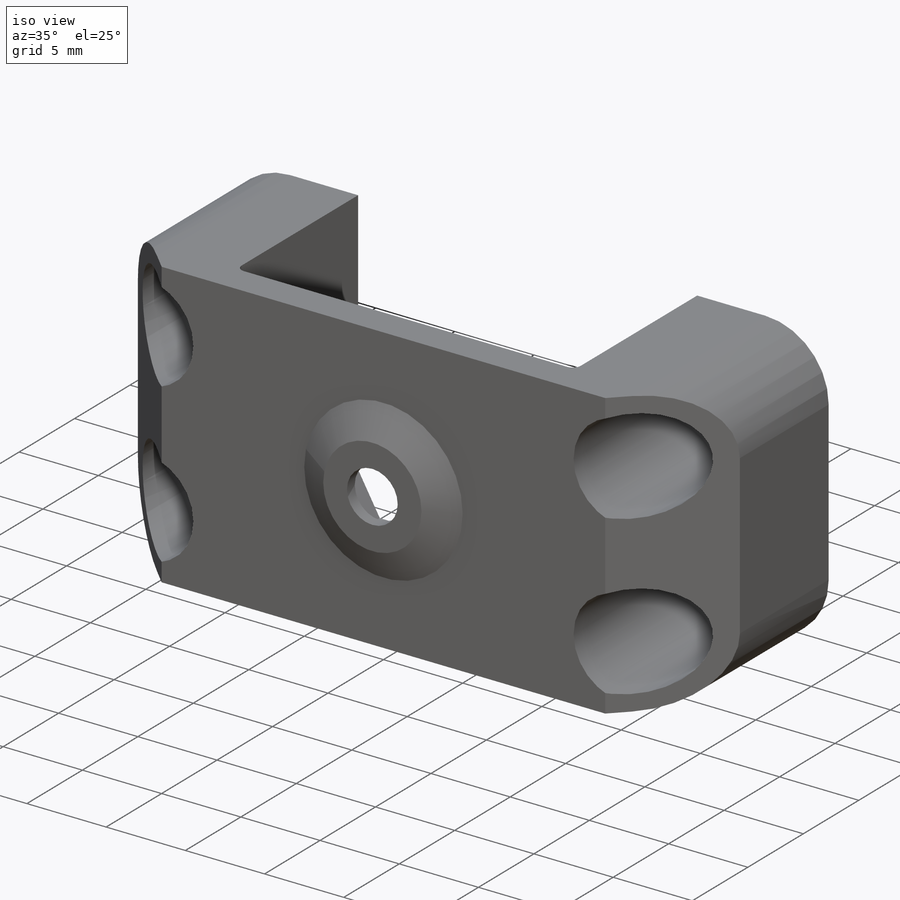
[diagram: iso view]
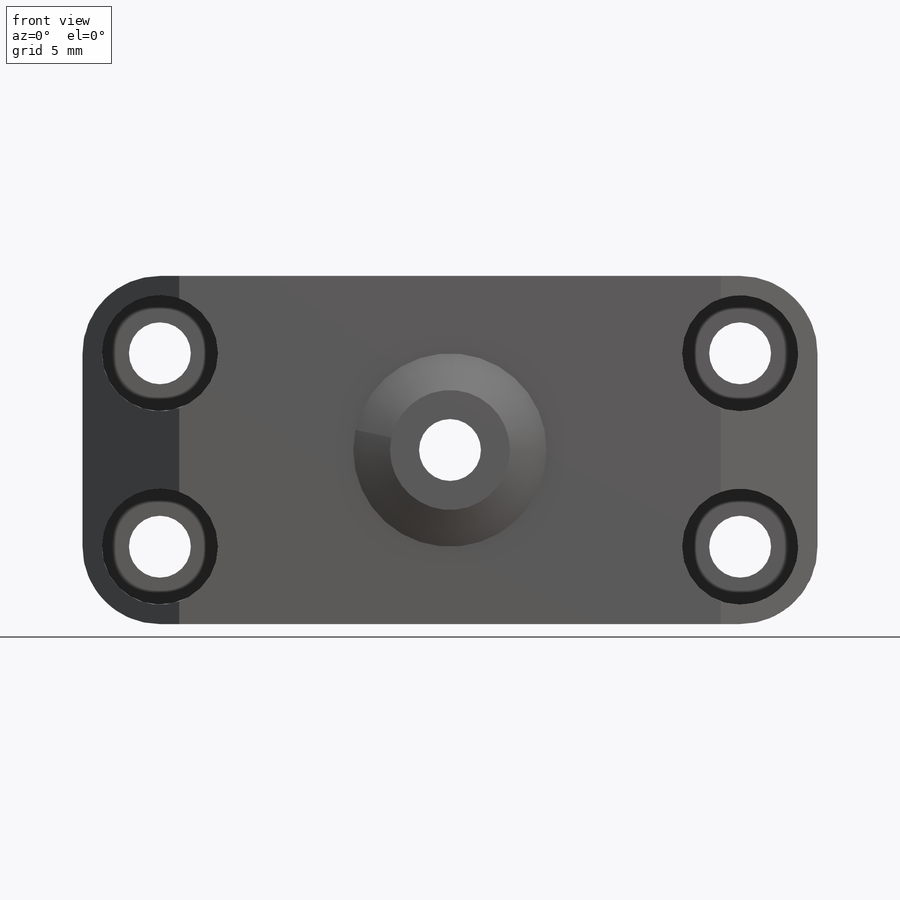
[diagram: front view]
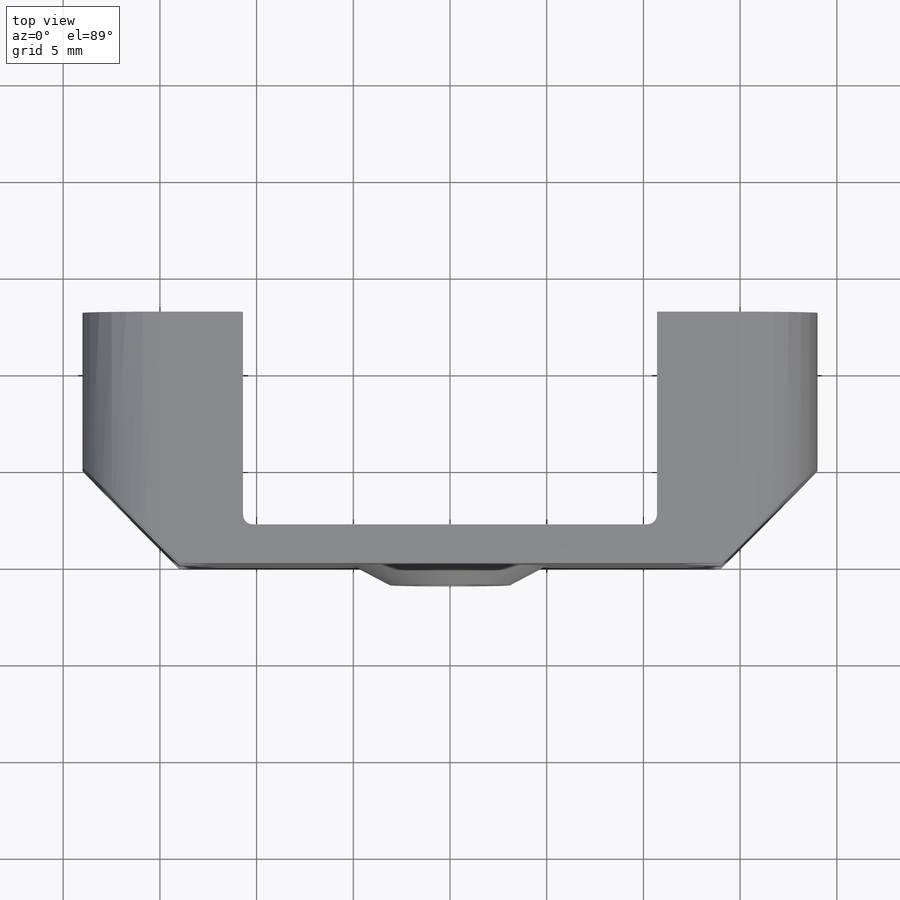
[diagram: top view]
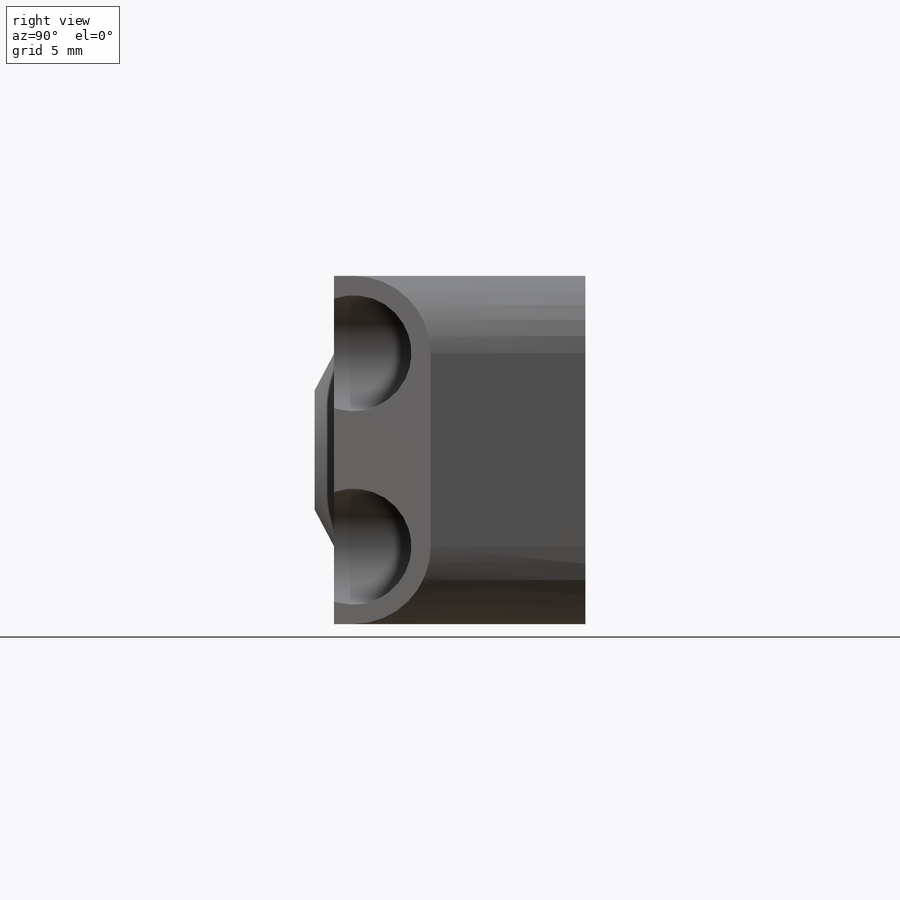
[diagram: right view]
SOLIDWORKS PART (.sldprt)
format: sldprt  version: not decoded by parser v0  size: 265,216 bytes
history: native  units: mm
features: sketch x7, cut_extrude x5, fillet x2, material x1, extrude x1, revolve x1 (+12 scaffold rows collapsed)
feature tree (29):
  scaffold x12  (default folders/planes/origin — collapsed)
  material  "Material <not specified>"
  sketch  "Sketch1"  dims[D1=2.0mm D2=21.4mm D3=38.0mm D4=11.0mm]
  extrude  "Boss-Extrude1"  Depth=18mm
  sketch  "Sketch2"  dims[D3=3.2mm D1=30.0mm D2=10.0mm]
  cut_extrude  "Cut-Extrude1"  [1 undecoded]
  sketch  "Sketch3"  dims[D1=3.2mm]
  cut_extrude  "Cut-Extrude2"  [1 undecoded]
  sketch  "Sketch9"  dims[c1.D1=1.0mm c1.D2=~3.763757mm c2.D2=37.0deg c3.D2=1.5mm c3.D3=10.0mm]
  revolve  "Revolve1"  Angle=360deg
  sketch  "Sketch4"  dims[D1=5.6mm]
  cut_extrude  "Cut-Extrude3"  Depth=2.3mm
  sketch  "Sketch10"  dims[D1=5.0mm]
  cut_extrude  "Cut-Extrude4"  [1 undecoded]
  fillet  "Fillet2"  Radius=4mm
  fillet  "Fillet5"  Radius=0.5mm
  sketch  "Sketch11"  dims[D1=6.0mm]
  cut_extrude  "Cut-Extrude5"  Depth=2mm
decode coverage: 13 of 16 modeling features carry decoded parameters
note: ~ marks probable driven/reference dimensions
note: 3 parameter values undecoded
summary: no parameter record found for 3 features
note: suppression state not decoded; provenance and decode notes live in map.json
